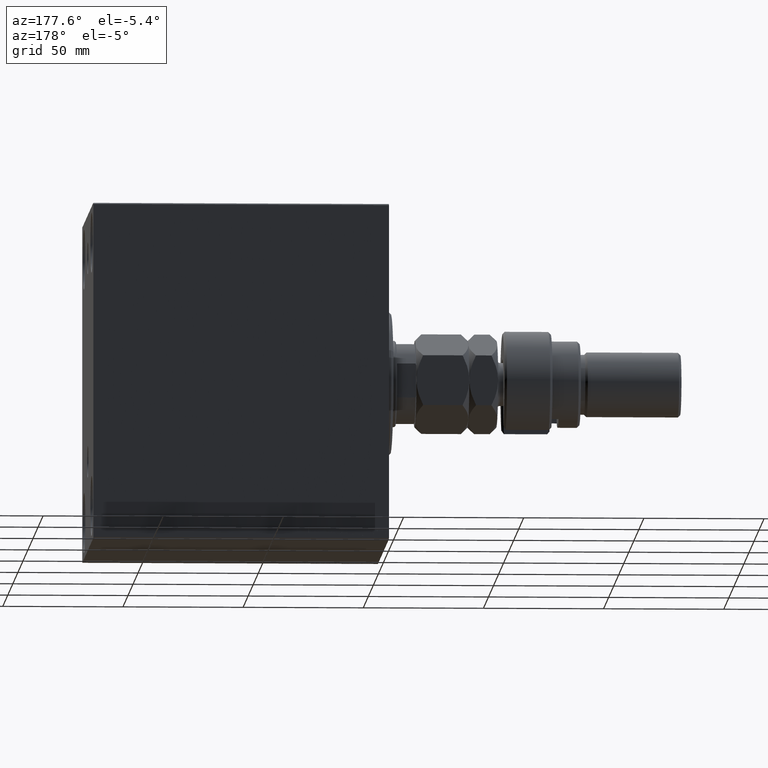
[diagram: clean part render]
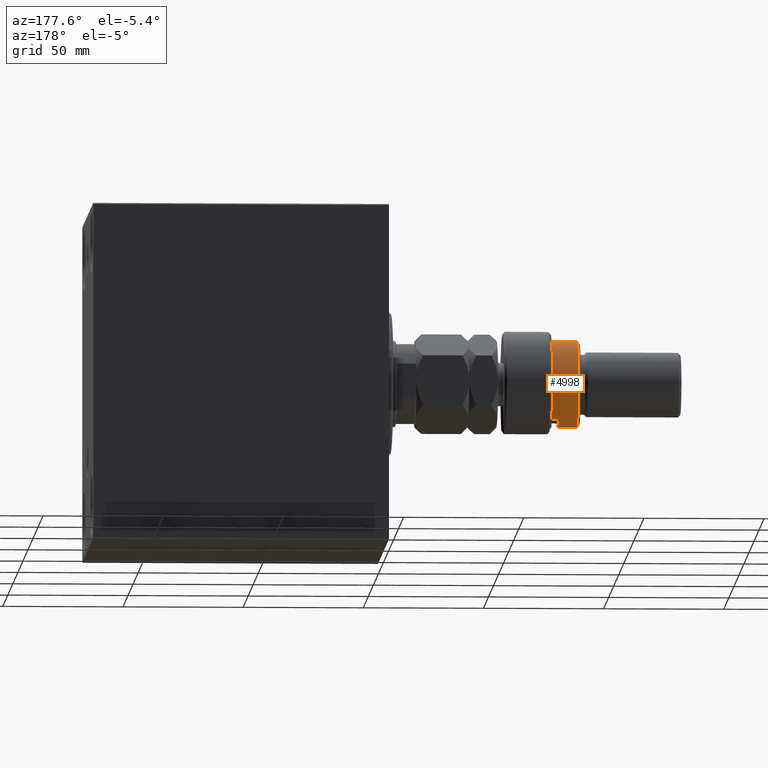
[diagram: same view with one face highlighted and labeled with its STEP entity id]
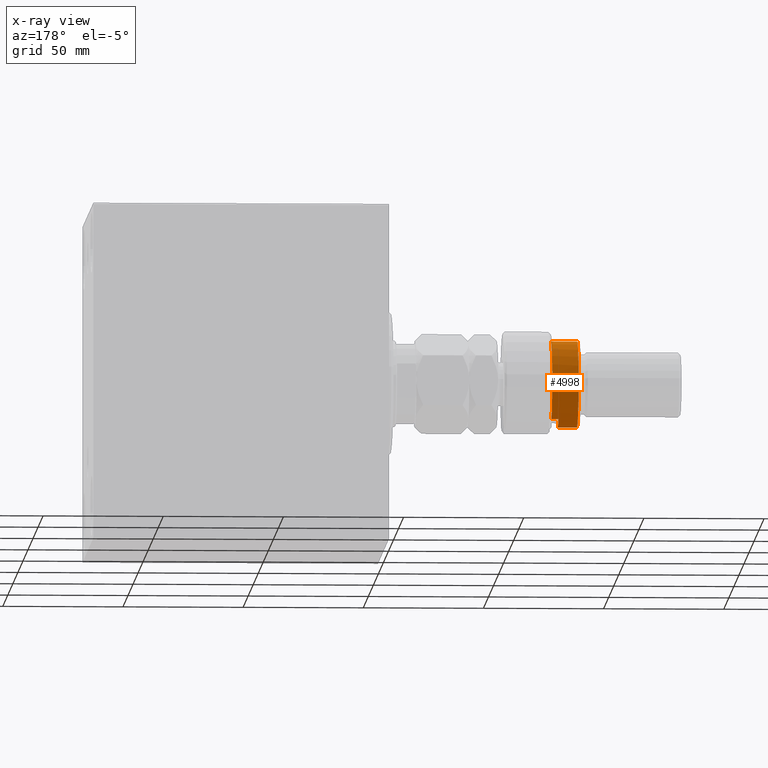
[diagram: x-ray of the same camera — body ghosted, the highlighted face saturated]
A machine part, auxiliary view. The second image highlights one B-rep face of the part: STEP entity #4998.
The next image is the same camera in x-ray: the body ghosted, the highlighted face saturated — about 0% of this face is hidden behind the body in this view.
In plain terms, the highlighted cylindrical surface (partial cylindrical patch) has radius 18 mm, axis along (1, -0, -0).
Its self-contained STEP definition (entity closure, byte-faithful):
#612 = EDGE_CURVE ( 'NONE', #37452, #40958, #38587, .T. ) ;
#1610 = CARTESIAN_POINT ( 'NONE',  ( -18.00000000000000000, 0.000000000000000000, 23.00000000000000000 ) ) ;
#2079 = DIRECTION ( 'NONE',  ( 1.000000000000000000, 0.000000000000000000, 0.000000000000000000 ) ) ;
#2481 = DIRECTION ( 'NONE',  ( 0.000000000000000000, 0.000000000000000000, 1.000000000000000000 ) ) ;
#3544 = CIRCLE ( 'NONE', #35929, 18.00000000000000000 ) ;
#3842 = EDGE_CURVE ( 'NONE', #36928, #21237, #13787, .T. ) ;
#4604 = ORIENTED_EDGE ( 'NONE', *, *, #18363, .F. ) ;
#4998 = ADVANCED_FACE ( 'NONE', ( #16591 ), #23918, .T. ) ;
#5555 = CARTESIAN_POINT ( 'NONE',  ( 18.00000000000000000, 2.204364238465235428E-15, 32.00000000000000000 ) ) ;
#5620 = CARTESIAN_POINT ( 'NONE',  ( 0.000000000000000000, 0.000000000000000000, 30.99999999999999645 ) ) ;
#6153 = VERTEX_POINT ( 'NONE', #9872 ) ;
#7036 = CARTESIAN_POINT ( 'NONE',  ( 18.00000000000000000, 2.204364238465235428E-15, 30.99999999999999645 ) ) ;
#7424 = CARTESIAN_POINT ( 'NONE',  ( -15.28888485142065434, 9.500000000000000000, 19.99999999999999645 ) ) ;
#7472 = ORIENTED_EDGE ( 'NONE', *, *, #612, .T. ) ;
#8098 = DIRECTION ( 'NONE',  ( 1.000000000000000000, 0.000000000000000000, 0.000000000000000000 ) ) ;
#8100 = VERTEX_POINT ( 'NONE', #1610 ) ;
#8121 = VECTOR ( 'NONE', #38564, 1000.000000000000000 ) ;
#9779 = LINE ( 'NONE', #5555, #8121 ) ;
#9872 = CARTESIAN_POINT ( 'NONE',  ( 18.00000000000000000, 2.204364238465235428E-15, 20.00000000000000000 ) ) ;
#11630 = CARTESIAN_POINT ( 'NONE',  ( 0.000000000000000000, 0.000000000000000000, 20.00000000000000000 ) ) ;
#11880 = CARTESIAN_POINT ( 'NONE',  ( -18.00000000000000000, 0.000000000000000000, 32.00000000000000000 ) ) ;
#13279 = DIRECTION ( 'NONE',  ( -0.000000000000000000, -0.000000000000000000, -1.000000000000000000 ) ) ;
#13739 = CARTESIAN_POINT ( 'NONE',  ( 0.000000000000000000, 0.000000000000000000, 32.00000000000000000 ) ) ;
#13787 = LINE ( 'NONE', #35017, #37145 ) ;
#14140 = EDGE_CURVE ( 'NONE', #8100, #21237, #3544, .T. ) ;
#16591 = FACE_OUTER_BOUND ( 'NONE', #27764, .T. ) ;
#17351 = EDGE_CURVE ( 'NONE', #6153, #36928, #25494, .T. ) ;
#18363 = EDGE_CURVE ( 'NONE', #37452, #8100, #44211, .T. ) ;
#18777 = ORIENTED_EDGE ( 'NONE', *, *, #17351, .T. ) ;
#20847 = DIRECTION ( 'NONE',  ( -1.000000000000000000, 0.000000000000000000, 0.000000000000000000 ) ) ;
#21237 = VERTEX_POINT ( 'NONE', #45978 ) ;
#23629 = DIRECTION ( 'NONE',  ( -1.000000000000000000, 0.000000000000000000, 0.000000000000000000 ) ) ;
#23918 = CYLINDRICAL_SURFACE ( 'NONE', #31845, 18.00000000000000000 ) ;
#25494 = CIRCLE ( 'NONE', #37556, 18.00000000000000000 ) ;
#25868 = ORIENTED_EDGE ( 'NONE', *, *, #3842, .T. ) ;
#27165 = CARTESIAN_POINT ( 'NONE',  ( 0.000000000000000000, 0.000000000000000000, 23.00000000000000000 ) ) ;
#27764 = EDGE_LOOP ( 'NONE', ( #7472, #46263, #18777, #25868, #28701, #4604 ) ) ;
#28048 = AXIS2_PLACEMENT_3D ( 'NONE', #5620, #30867, #2079 ) ;
#28701 = ORIENTED_EDGE ( 'NONE', *, *, #14140, .F. ) ;
#30867 = DIRECTION ( 'NONE',  ( 0.000000000000000000, 0.000000000000000000, -1.000000000000000000 ) ) ;
#31845 = AXIS2_PLACEMENT_3D ( 'NONE', #13739, #13279, #20847 ) ;
#33120 = DIRECTION ( 'NONE',  ( -0.000000000000000000, -0.000000000000000000, -1.000000000000000000 ) ) ;
#35017 = CARTESIAN_POINT ( 'NONE',  ( -15.28888485142065434, 9.500000000000000000, 32.00000000000000000 ) ) ;
#35334 = EDGE_CURVE ( 'NONE', #40958, #6153, #9779, .T. ) ;
#35929 = AXIS2_PLACEMENT_3D ( 'NONE', #27165, #41555, #23629 ) ;
#36928 = VERTEX_POINT ( 'NONE', #7424 ) ;
#37145 = VECTOR ( 'NONE', #2481, 1000.000000000000000 ) ;
#37452 = VERTEX_POINT ( 'NONE', #40750 ) ;
#37556 = AXIS2_PLACEMENT_3D ( 'NONE', #11630, #39958, #8098 ) ;
#38564 = DIRECTION ( 'NONE',  ( -0.000000000000000000, -0.000000000000000000, -1.000000000000000000 ) ) ;
#38587 = CIRCLE ( 'NONE', #28048, 18.00000000000000000 ) ;
#39958 = DIRECTION ( 'NONE',  ( 0.000000000000000000, 0.000000000000000000, 1.000000000000000000 ) ) ;
#40592 = VECTOR ( 'NONE', #33120, 1000.000000000000000 ) ;
#40750 = CARTESIAN_POINT ( 'NONE',  ( -18.00000000000000000, 0.000000000000000000, 30.99999999999999645 ) ) ;
#40958 = VERTEX_POINT ( 'NONE', #7036 ) ;
#41555 = DIRECTION ( 'NONE',  ( 0.000000000000000000, 0.000000000000000000, -1.000000000000000000 ) ) ;
#44211 = LINE ( 'NONE', #11880, #40592 ) ;
#45978 = CARTESIAN_POINT ( 'NONE',  ( -15.28888485142065434, 9.500000000000000000, 23.00000000000000000 ) ) ;
#46263 = ORIENTED_EDGE ( 'NONE', *, *, #35334, .T. ) ;